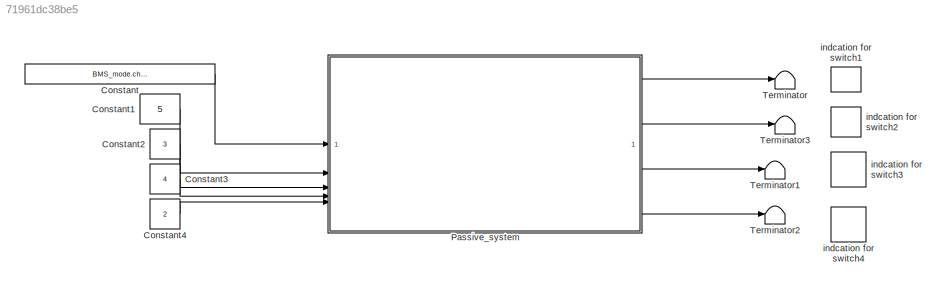
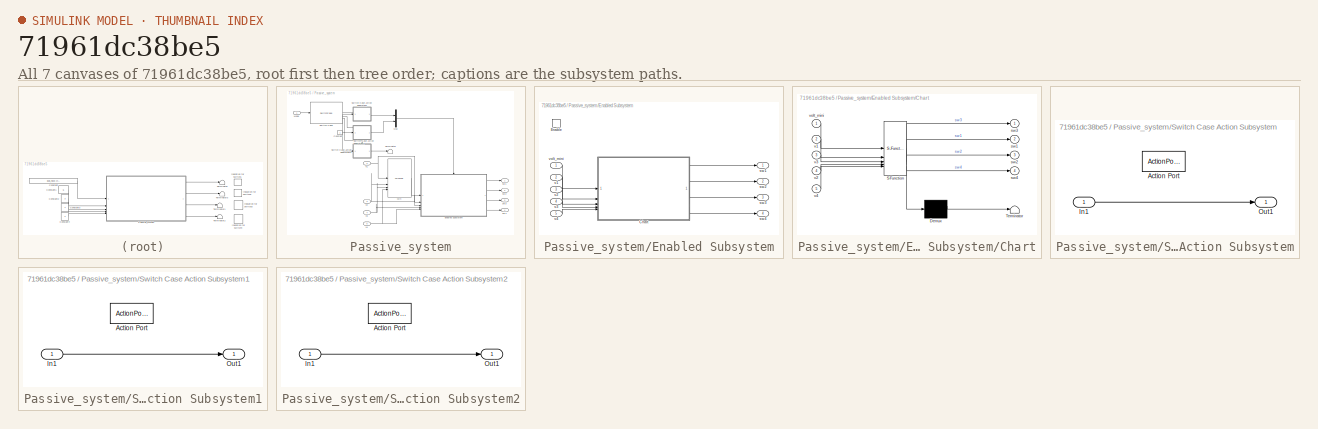
[diagram: thumbnail index - all 7 canvases of the model, root first then tree order]
MODEL slx_71961dc38be5
KIND model
CONFIG AbsTol = auto
CONFIG EnableMultiTasking = off
CONFIG FixedStep = auto
CONFIG MaxStep = auto
CONFIG MinStep = auto
CONFIG RelTol = 1e-3
CONFIG SampleTimeConstraint = Unconstrained
CONFIG SolverName = VariableStepAuto
CONFIG StartTime = 0.0
CONFIG StopTime = 10.0
BLOCK [Constant] Constant
  OutDataTypeStr = Enum: BMS_mode
  Value = BMS_mode.charging
BLOCK [Constant] Constant1
  Value = 5
BLOCK [Constant] Constant2
  Value = 3
BLOCK [Constant] Constant3
  Value = 4
BLOCK [Constant] Constant4
  Value = 2
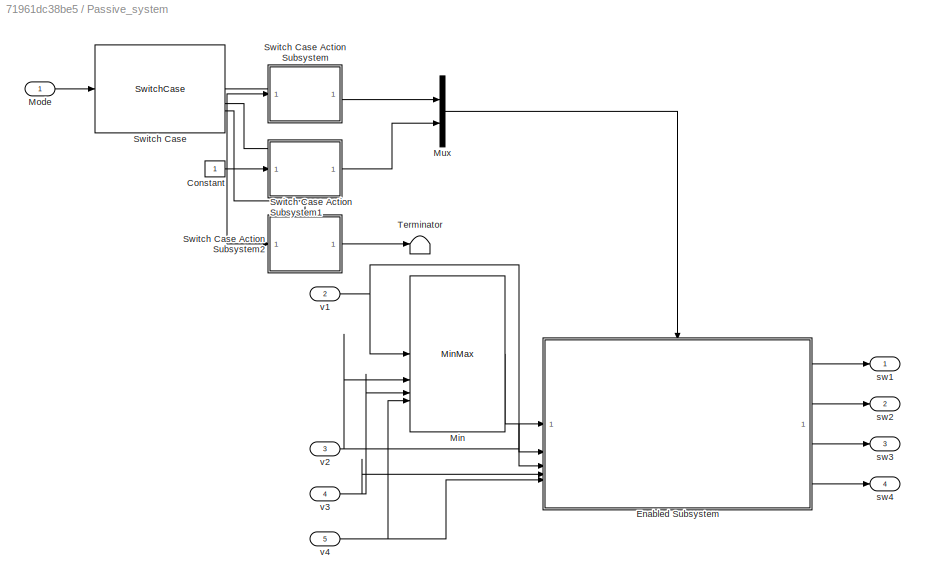
BLOCK [SubSystem] Passive_system
BLOCK [Constant] Passive_system/Constant
BLOCK [SubSystem] Passive_system/Enabled Subsystem
  TreatAsAtomicUnit = on
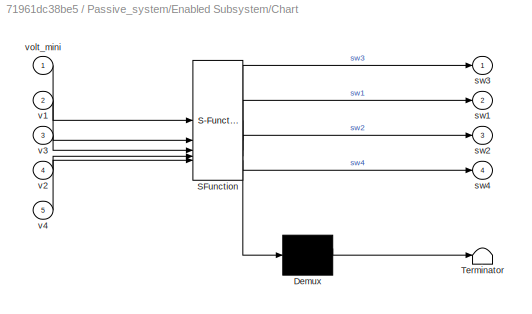
BLOCK [SubSystem] Passive_system/Enabled Subsystem/Chart
  ErrorFcn = Stateflow.Translate.translate
  PermitHierarchicalResolution = ExplicitOnly
  PortSchema = {"entries":[{"content":{"sides":[{"content":{"connectorIds":["In1","In2","In3","In4","In5"]},"type":"ConnectorPlacement.EquallySpacedRectSide","uuid":"f29a8cda-8803-475f-abd3-4e4339aba25e"},{"content":{"connectorIds":["Out2","Out3","Out1","Out4"],"side":"RIGHT"},"type":"ConnectorPlacement.EquallySpacedRectSide","uuid":"0598b39c-caa4-4adf-8d5c-28c07f0296f4"},{"content":{"connectorIds":[],"side":"TO...<+429ch>
  SFBlockType = Chart
  TreatAsAtomicUnit = on
BLOCK [Demux] Passive_system/Enabled Subsystem/Chart/ Demux 
  Outputs = 1
BLOCK [S-Function] Passive_system/Enabled Subsystem/Chart/ SFunction 
  EnableBusSupport = on
  FunctionName = sf_sfun
  PortCounts = [5 5]
  SFcnIsStateOwnerBlock = off
  SFunctionDeploymentMode = off
  Tag = Stateflow S-Function 3
BLOCK [Terminator] Passive_system/Enabled Subsystem/Chart/ Terminator 
BLOCK [Outport] Passive_system/Enabled Subsystem/Chart/sw1
  Port = 2
BLOCK [Outport] Passive_system/Enabled Subsystem/Chart/sw2
  Port = 3
BLOCK [Outport] Passive_system/Enabled Subsystem/Chart/sw3
BLOCK [Outport] Passive_system/Enabled Subsystem/Chart/sw4
  Port = 4
BLOCK [Inport] Passive_system/Enabled Subsystem/Chart/v1
  Port = 2
BLOCK [Inport] Passive_system/Enabled Subsystem/Chart/v2
  Port = 4
BLOCK [Inport] Passive_system/Enabled Subsystem/Chart/v3
  Port = 3
BLOCK [Inport] Passive_system/Enabled Subsystem/Chart/v4
  Port = 5
BLOCK [Inport] Passive_system/Enabled Subsystem/Chart/volt_mini
BLOCK [EnablePort] Passive_system/Enabled Subsystem/Enable
BLOCK [Outport] Passive_system/Enabled Subsystem/sw1
BLOCK [Outport] Passive_system/Enabled Subsystem/sw2
  Port = 2
BLOCK [Outport] Passive_system/Enabled Subsystem/sw3
  Port = 3
BLOCK [Outport] Passive_system/Enabled Subsystem/sw4
  Port = 4
BLOCK [Inport] Passive_system/Enabled Subsystem/v1
  Port = 2
BLOCK [Inport] Passive_system/Enabled Subsystem/v2
  Port = 3
BLOCK [Inport] Passive_system/Enabled Subsystem/v3
  Port = 4
BLOCK [Inport] Passive_system/Enabled Subsystem/v4
  Port = 5
BLOCK [Inport] Passive_system/Enabled Subsystem/volt_mini
BLOCK [MinMax] Passive_system/Min
  Inputs = 4
BLOCK [Inport] Passive_system/Mode
BLOCK [Mux] Passive_system/Mux
  DisplayOption = bar
  Inputs = 2
BLOCK [SwitchCase] Passive_system/Switch Case
  CaseConditions = [BMS_mode.off,BMS_mode.charging,BMS_mode.discharging]
  ShowDefaultCase = off
BLOCK [SubSystem] Passive_system/Switch Case Action Subsystem
  TreatAsAtomicUnit = on
BLOCK [ActionPort] Passive_system/Switch Case Action Subsystem/Action Port
  ActionPortLabel = case [ off ]:
BLOCK [Inport] Passive_system/Switch Case Action Subsystem/In1
BLOCK [Outport] Passive_system/Switch Case Action Subsystem/Out1
BLOCK [SubSystem] Passive_system/Switch Case Action Subsystem1
  TreatAsAtomicUnit = on
BLOCK [ActionPort] Passive_system/Switch Case Action Subsystem1/Action Port
  ActionPortLabel = case [ charging ]:
BLOCK [Inport] Passive_system/Switch Case Action Subsystem1/In1
BLOCK [Outport] Passive_system/Switch Case Action Subsystem1/Out1
BLOCK [SubSystem] Passive_system/Switch Case Action Subsystem2
  TreatAsAtomicUnit = on
BLOCK [ActionPort] Passive_system/Switch Case Action Subsystem2/Action Port
  ActionPortLabel = case [ discharging ]:
BLOCK [Inport] Passive_system/Switch Case Action Subsystem2/In1
BLOCK [Outport] Passive_system/Switch Case Action Subsystem2/Out1
BLOCK [Terminator] Passive_system/Terminator
BLOCK [Outport] Passive_system/sw1
BLOCK [Outport] Passive_system/sw2
  Port = 2
BLOCK [Outport] Passive_system/sw3
  Port = 3
BLOCK [Outport] Passive_system/sw4
  Port = 4
BLOCK [Inport] Passive_system/v1
  Port = 2
BLOCK [Inport] Passive_system/v2
  Port = 3
BLOCK [Inport] Passive_system/v3
  Port = 4
BLOCK [Inport] Passive_system/v4
  Port = 5
BLOCK [Terminator] Terminator
BLOCK [Terminator] Terminator1
BLOCK [Terminator] Terminator2
BLOCK [Terminator] Terminator3
BLOCK [CustomWebBlock] indcation for switch1
  Configuration = {"components":[{"name":"BackgroundImageComponent","settings":{"image":{"size":[150,150],"src":"data:image\/svg+xml;base64,PHN2ZyB4bWxucz0iaHR0cDovL3d3dy53My5vcmcvMjAwMC9zdmciIHhtbG5zOnhsaW5rPSJodHRwOi8vd3d3LnczLm9yZy8xOTk5L3hsaW5rIiB2aWV3Qm94PSIwIDAgNTAwIDUwMCI+PGRlZnM+PHN0eWxlPi5he2ZpbGw6dXJsKCNhKTt9LmJ7ZmlsbDp1cmwoI2IpO30uY3tmaWxsOnVybCgjYyk7fTwvc3R5bGU+PHJhZGlhbEdyYWRpZW50IGlkPSJhIiBjeD0iMjgzLj...<+21371ch>
  LabelPosition = Hide
  ShowInitialText = on
BLOCK [CustomWebBlock] indcation for switch2
  Configuration = {"components":[{"name":"BackgroundImageComponent","settings":{"image":{"size":[150,150],"src":"data:image\/svg+xml;base64,PHN2ZyB4bWxucz0iaHR0cDovL3d3dy53My5vcmcvMjAwMC9zdmciIHhtbG5zOnhsaW5rPSJodHRwOi8vd3d3LnczLm9yZy8xOTk5L3hsaW5rIiB2aWV3Qm94PSIwIDAgNTAwIDUwMCI+PGRlZnM+PHN0eWxlPi5he2ZpbGw6dXJsKCNhKTt9LmJ7ZmlsbDp1cmwoI2IpO30uY3tmaWxsOnVybCgjYyk7fTwvc3R5bGU+PHJhZGlhbEdyYWRpZW50IGlkPSJhIiBjeD0iMjgzLj...<+21371ch>
  LabelPosition = Hide
  ShowInitialText = on
BLOCK [CustomWebBlock] indcation for switch3
  Configuration = {"components":[{"name":"BackgroundImageComponent","settings":{"image":{"size":[150,150],"src":"data:image\/svg+xml;base64,PHN2ZyB4bWxucz0iaHR0cDovL3d3dy53My5vcmcvMjAwMC9zdmciIHhtbG5zOnhsaW5rPSJodHRwOi8vd3d3LnczLm9yZy8xOTk5L3hsaW5rIiB2aWV3Qm94PSIwIDAgNTAwIDUwMCI+PGRlZnM+PHN0eWxlPi5he2ZpbGw6dXJsKCNhKTt9LmJ7ZmlsbDp1cmwoI2IpO30uY3tmaWxsOnVybCgjYyk7fTwvc3R5bGU+PHJhZGlhbEdyYWRpZW50IGlkPSJhIiBjeD0iMjgzLj...<+21354ch>
  LabelPosition = Hide
  ShowInitialText = on
BLOCK [CustomWebBlock] indcation for switch4
  Configuration = {"components":[{"name":"BackgroundImageComponent","settings":{"image":{"size":[150,150],"src":"data:image\/svg+xml;base64,PHN2ZyB4bWxucz0iaHR0cDovL3d3dy53My5vcmcvMjAwMC9zdmciIHhtbG5zOnhsaW5rPSJodHRwOi8vd3d3LnczLm9yZy8xOTk5L3hsaW5rIiB2aWV3Qm94PSIwIDAgNTAwIDUwMCI+PGRlZnM+PHN0eWxlPi5he2ZpbGw6dXJsKCNhKTt9LmJ7ZmlsbDp1cmwoI2IpO30uY3tmaWxsOnVybCgjYyk7fTwvc3R5bGU+PHJhZGlhbEdyYWRpZW50IGlkPSJhIiBjeD0iMjgzLj...<+21370ch>
  LabelPosition = Hide
  ShowInitialText = on
LINE Constant1:1 -> Passive_system:2
LINE Constant2:1 -> Passive_system:3
LINE Constant3:1 -> Passive_system:4
LINE Constant4:1 -> Passive_system:5
LINE Constant:1 -> Passive_system:1
NET Passive_system/Constant:1 -> Passive_system/Switch Case Action Subsystem1:1, Passive_system/Switch Case Action Subsystem2:1, Passive_system/Switch Case Action Subsystem:1
LINE Passive_system/Enabled Subsystem/Chart:1 -> Passive_system/Enabled Subsystem/sw3:1
LINE Passive_system/Enabled Subsystem/Chart:2 -> Passive_system/Enabled Subsystem/sw1:1
LINE Passive_system/Enabled Subsystem/Chart:3 -> Passive_system/Enabled Subsystem/sw2:1
LINE Passive_system/Enabled Subsystem/Chart:4 -> Passive_system/Enabled Subsystem/sw4:1
LINE Passive_system/Enabled Subsystem/v1:1 -> Passive_system/Enabled Subsystem/Chart:2
LINE Passive_system/Enabled Subsystem/v2:1 -> Passive_system/Enabled Subsystem/Chart:3
LINE Passive_system/Enabled Subsystem/v3:1 -> Passive_system/Enabled Subsystem/Chart:4
LINE Passive_system/Enabled Subsystem/v4:1 -> Passive_system/Enabled Subsystem/Chart:5
LINE Passive_system/Enabled Subsystem/volt_mini:1 -> Passive_system/Enabled Subsystem/Chart:1
LINE Passive_system/Enabled Subsystem:1 -> Passive_system/sw1:1
LINE Passive_system/Enabled Subsystem:2 -> Passive_system/sw2:1
LINE Passive_system/Enabled Subsystem:3 -> Passive_system/sw3:1
LINE Passive_system/Enabled Subsystem:4 -> Passive_system/sw4:1
LINE Passive_system/Min:1 -> Passive_system/Enabled Subsystem:1
LINE Passive_system/Mode:1 -> Passive_system/Switch Case:1
LINE Passive_system/Mux:1 -> Passive_system/Enabled Subsystem:enable
LINE Passive_system/Switch Case Action Subsystem/In1:1 -> Passive_system/Switch Case Action Subsystem/Out1:1
LINE Passive_system/Switch Case Action Subsystem1/In1:1 -> Passive_system/Switch Case Action Subsystem1/Out1:1
LINE Passive_system/Switch Case Action Subsystem1:1 -> Passive_system/Mux:2
LINE Passive_system/Switch Case Action Subsystem2/In1:1 -> Passive_system/Switch Case Action Subsystem2/Out1:1
LINE Passive_system/Switch Case Action Subsystem2:1 -> Passive_system/Terminator:1
LINE Passive_system/Switch Case Action Subsystem:1 -> Passive_system/Mux:1
LINE Passive_system/Switch Case:1 -> Passive_system/Switch Case Action Subsystem:ifaction
LINE Passive_system/Switch Case:2 -> Passive_system/Switch Case Action Subsystem1:ifaction
LINE Passive_system/Switch Case:3 -> Passive_system/Switch Case Action Subsystem2:ifaction
NET Passive_system/v1:1 -> Passive_system/Enabled Subsystem:2, Passive_system/Min:1
NET Passive_system/v2:1 -> Passive_system/Enabled Subsystem:3, Passive_system/Min:2
NET Passive_system/v3:1 -> Passive_system/Enabled Subsystem:4, Passive_system/Min:3
NET Passive_system/v4:1 -> Passive_system/Enabled Subsystem:5, Passive_system/Min:4
LINE Passive_system:1 -> Terminator:1
LINE Passive_system:2 -> Terminator3:1
LINE Passive_system:3 -> Terminator1:1
LINE Passive_system:4 -> Terminator2:1
note: NET lines group one-source signal fan-out (src -> all destinations, sorted); 1:1 wires keep LINE
CHART Passive_system/Enabled
Subsystem/Chart states=0 transitions=69
CHART  states=0 transitions=0
